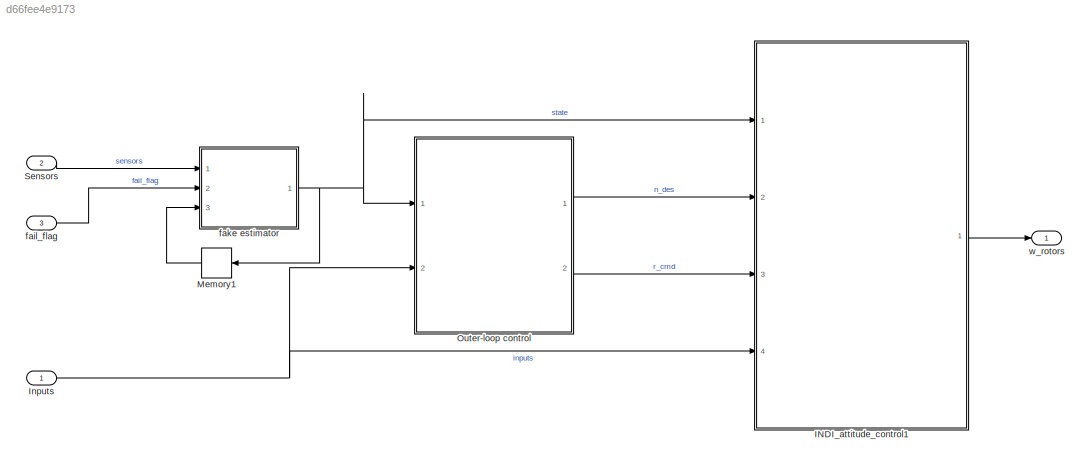
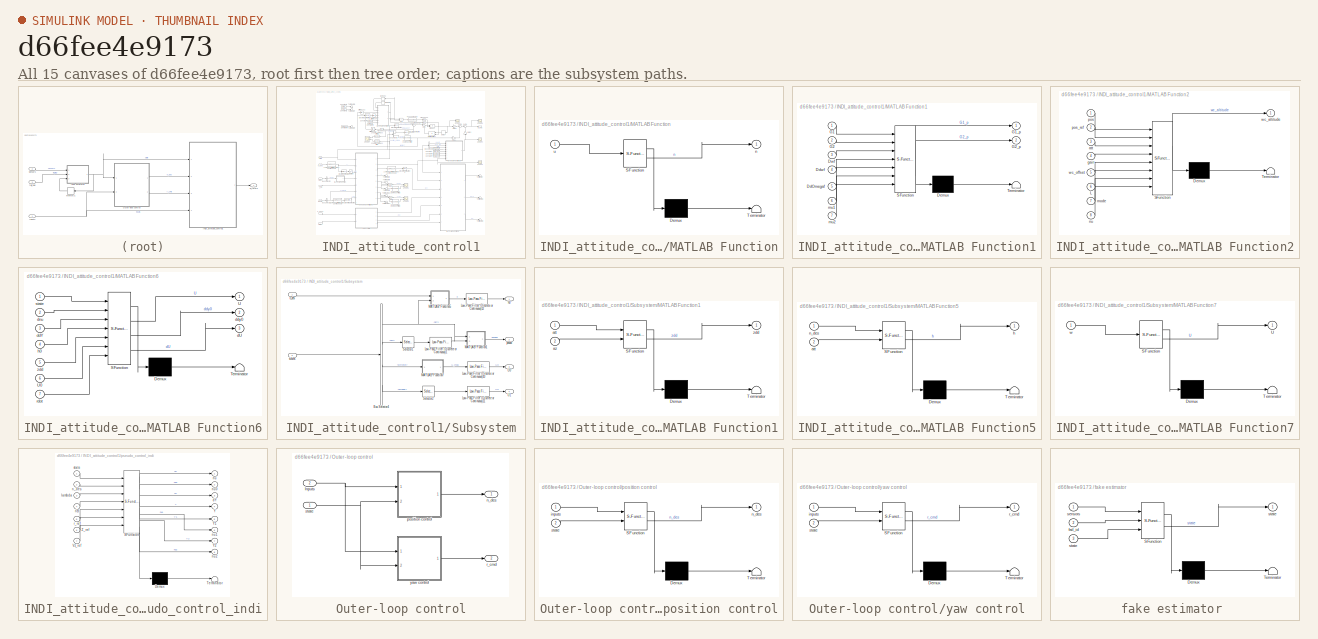
[diagram: thumbnail index - all 15 canvases of the model, root first then tree order]
MODEL slx_d66fee4e9173
KIND model
CONFIG AbsTol = auto
CONFIG EnableMultiTasking = off
CONFIG FixedStep = 0.001
CONFIG MaxStep = auto
CONFIG MinStep = auto
CONFIG RelTol = 1e-3
CONFIG SampleTimeConstraint = Unconstrained
CONFIG SolverName = ode3
CONFIG StartTime = 0.0
CONFIG StopTime = 10.0
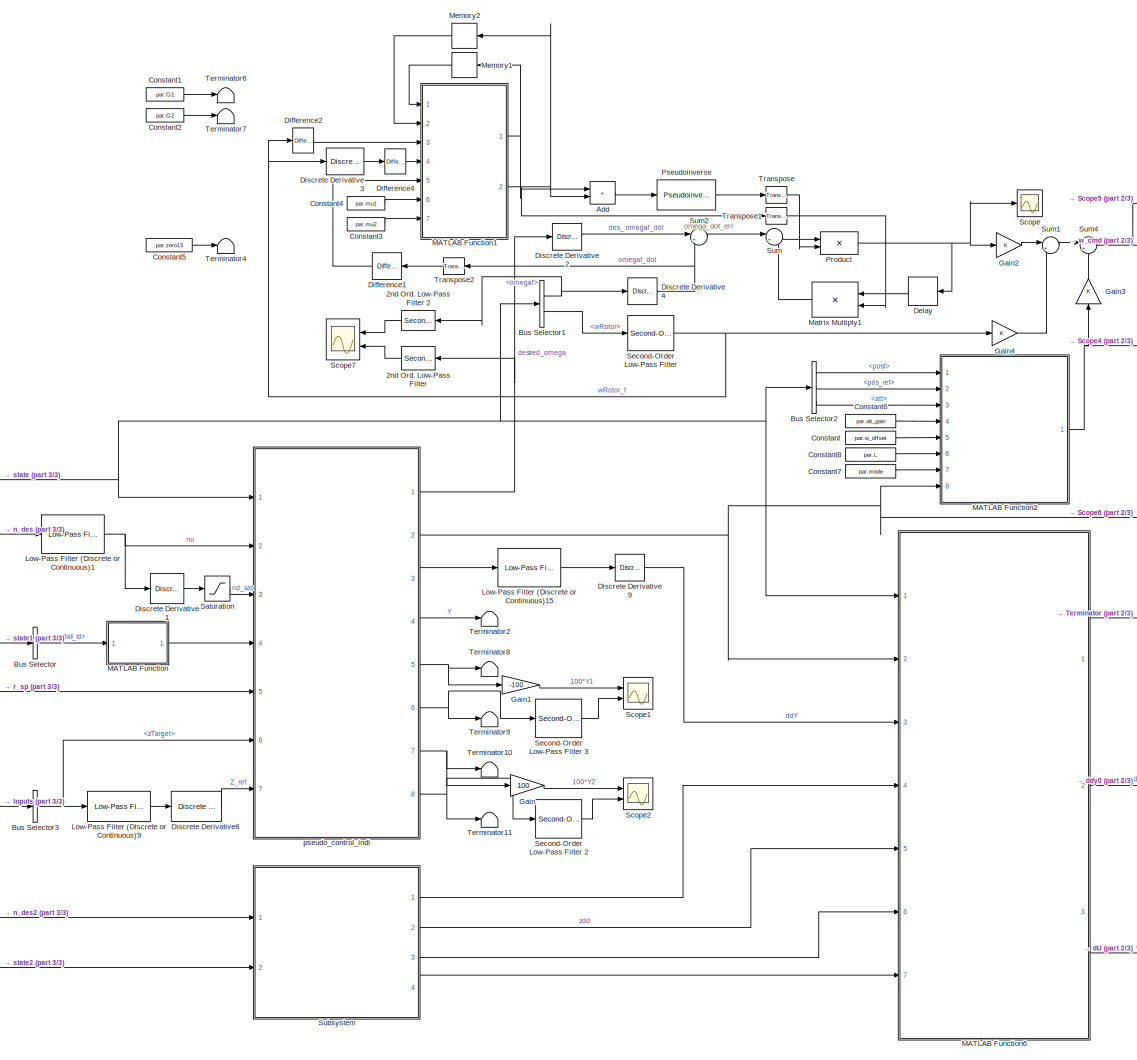
[diagram: INDI_attitude_control1 - part 1/3, most of the canvas]
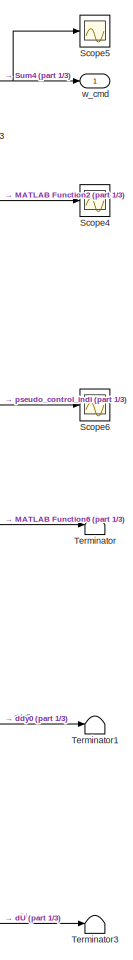
[diagram: INDI_attitude_control1 - part 2/3, right side, full height]
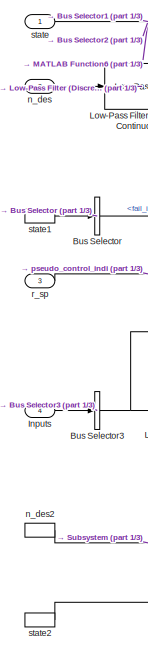
[diagram: INDI_attitude_control1 - part 3/3, bottom left region]
BLOCK [SubSystem] INDI_attitude_control1
  Ports = [4, 1]
  RequestExecContextInheritance = off
BLOCK [Reference] INDI_attitude_control1/2nd Ord. Low-Pass Filter  REF=eeGeneralControl/Second-Order
Low-Pass Filter
(Discrete or Continuous)
  NameLocation = top
  Ports = [1, 1]
  SourceBlock = eeGeneralControl/Second-Order\nLow-Pass Filter\n(Discrete or Continuous)
  SourceProductBaseCode = PS
  SourceType = Second-Order Low-Pass Filter (Discrete or Continuous)
BLOCK [Reference] INDI_attitude_control1/2nd Ord. Low-Pass Filter 2  REF=eeGeneralControl/Second-Order
Low-Pass Filter
(Discrete or Continuous)
  NameLocation = top
  Ports = [1, 1]
  SourceBlock = eeGeneralControl/Second-Order\nLow-Pass Filter\n(Discrete or Continuous)
  SourceProductBaseCode = PS
  SourceType = Second-Order Low-Pass Filter (Discrete or Continuous)
BLOCK [Sum] INDI_attitude_control1/Add
  IconShape = rectangular
  Ports = [2, 1]
BLOCK [BusSelector] INDI_attitude_control1/Bus Selector
  OutputSignals = fail_id
  Ports = [1, 1]
BLOCK [BusSelector] INDI_attitude_control1/Bus Selector1
  OutputSignals = omegaf,wRotor
  Ports = [1, 2]
BLOCK [BusSelector] INDI_attitude_control1/Bus Selector2
  OutputSignals = posf,pos_ref,att
  Ports = [1, 3]
BLOCK [BusSelector] INDI_attitude_control1/Bus Selector3
  OutputSignals = zTarget
  Ports = [1, 1]
BLOCK [Constant] INDI_attitude_control1/Constant
  Value = par.w_offset
BLOCK [Constant] INDI_attitude_control1/Constant1
  Value = par.G1
BLOCK [Constant] INDI_attitude_control1/Constant2
  Value = par.G2
BLOCK [Constant] INDI_attitude_control1/Constant3
  Value = par.mu2
BLOCK [Constant] INDI_attitude_control1/Constant4
  Value = par.mu1
BLOCK [Constant] INDI_attitude_control1/Constant5
  Value = par.zero13
BLOCK [Constant] INDI_attitude_control1/Constant6
  Value = par.alt_gain
BLOCK [Constant] INDI_attitude_control1/Constant7
  Value = par.mode
BLOCK [Constant] INDI_attitude_control1/Constant8
  Value = par.L
BLOCK [Delay] INDI_attitude_control1/Delay
  DelayLength = 1
  InitialCondition = 0
  InputPortMap = u0
  NameLocation = top
  Ports = [1, 1]
BLOCK [Reference] INDI_attitude_control1/Difference1  REF=simulink/Discrete/Difference
  NameLocation = top
  Ports = [1, 1]
  SourceBlock = simulink/Discrete/Difference
  SourceProductBaseCode = SL
  SourceType = Difference
BLOCK [Reference] INDI_attitude_control1/Difference2  REF=simulink/Discrete/Difference
  Ports = [1, 1]
  SourceBlock = simulink/Discrete/Difference
  SourceProductBaseCode = SL
  SourceType = Difference
BLOCK [Reference] INDI_attitude_control1/Difference4  REF=simulink/Discrete/Difference
  Ports = [1, 1]
  SourceBlock = simulink/Discrete/Difference
  SourceProductBaseCode = SL
  SourceType = Difference
BLOCK [Reference] INDI_attitude_control1/Discrete Derivative1  REF=simulink/Discrete/Discrete Derivative
  Ports = [1, 1]
  SourceBlock = simulink/Discrete/Discrete Derivative
  SourceProductBaseCode = SL
  SourceType = Discrete Derivative
BLOCK [Reference] INDI_attitude_control1/Discrete Derivative2  REF=simulink/Discrete/Discrete Derivative
  Ports = [1, 1]
  SourceBlock = simulink/Discrete/Discrete Derivative
  SourceProductBaseCode = SL
  SourceType = Discrete Derivative
BLOCK [Reference] INDI_attitude_control1/Discrete Derivative3  REF=simulink/Discrete/Discrete Derivative
  Ports = [1, 1]
  SourceBlock = simulink/Discrete/Discrete Derivative
  SourceProductBaseCode = SL
  SourceType = Discrete Derivative
BLOCK [Reference] INDI_attitude_control1/Discrete Derivative4  REF=simulink/Discrete/Discrete Derivative
  Ports = [1, 1]
  SourceBlock = simulink/Discrete/Discrete Derivative
  SourceProductBaseCode = SL
  SourceType = Discrete Derivative
BLOCK [Reference] INDI_attitude_control1/Discrete Derivative8  REF=simulink/Discrete/Discrete Derivative
  Ports = [1, 1]
  SourceBlock = simulink/Discrete/Discrete Derivative
  SourceProductBaseCode = SL
  SourceType = Discrete Derivative
BLOCK [Reference] INDI_attitude_control1/Discrete Derivative9  REF=simulink/Discrete/Discrete Derivative
  Ports = [1, 1]
  SourceBlock = simulink/Discrete/Discrete Derivative
  SourceProductBaseCode = SL
  SourceType = Discrete Derivative
BLOCK [Gain] INDI_attitude_control1/Gain
  Gain = 100
BLOCK [Gain] INDI_attitude_control1/Gain1
  Gain = -100
BLOCK [Gain] INDI_attitude_control1/Gain2
BLOCK [Gain] INDI_attitude_control1/Gain3
  NameLocation = right
BLOCK [Gain] INDI_attitude_control1/Gain4
BLOCK [Inport] INDI_attitude_control1/Inputs
  Port = 4
BLOCK [Reference] INDI_attitude_control1/Low-Pass Filter (Discrete or Continuous)1  REF=eeGeneralControl/Low-Pass Filter
(Discrete or Continuous)
  Ports = [1, 1]
  SourceBlock = eeGeneralControl/Low-Pass Filter\n(Discrete or Continuous)
  SourceProductBaseCode = PS
  SourceType = Low-Pass Filter (Discrete or Continuous)
BLOCK [Reference] INDI_attitude_control1/Low-Pass Filter (Discrete or Continuous)15  REF=eeGeneralControl/Low-Pass Filter
(Discrete or Continuous)
  Ports = [1, 1]
  SourceBlock = eeGeneralControl/Low-Pass Filter\n(Discrete or Continuous)
  SourceProductBaseCode = PS
  SourceType = Low-Pass Filter (Discrete or Continuous)
BLOCK [Reference] INDI_attitude_control1/Low-Pass Filter (Discrete or Continuous)9  REF=eeGeneralControl/Low-Pass Filter
(Discrete or Continuous)
  Ports = [1, 1]
  SourceBlock = eeGeneralControl/Low-Pass Filter\n(Discrete or Continuous)
  SourceProductBaseCode = PS
  SourceType = Low-Pass Filter (Discrete or Continuous)
BLOCK [SubSystem] INDI_attitude_control1/MATLAB Function
  ErrorFcn = Stateflow.Translate.translate
  PermitHierarchicalResolution = ExplicitOnly
  Ports = [1, 1]
  RequestExecContextInheritance = off
  SFBlockType = MATLAB Function
  TreatAsAtomicUnit = on
BLOCK [Demux] INDI_attitude_control1/MATLAB Function/ Demux 
  Outputs = 1
  Ports = [1, 1]
BLOCK [S-Function] INDI_attitude_control1/MATLAB Function/ SFunction 
  EnableBusSupport = on
  FunctionName = sf_sfun
  Parameters = par
  PortCounts = [1 2]
  Ports = [1, 2]
  SFcnIsStateOwnerBlock = off
  SFunctionDeploymentMode = off
  Tag = Stateflow S-Function 11
BLOCK [Terminator] INDI_attitude_control1/MATLAB Function/ Terminator 
BLOCK [Outport] INDI_attitude_control1/MATLAB Function/n
  VectorParamsAs1DForOutWhenUnconnected = off
BLOCK [Inport] INDI_attitude_control1/MATLAB Function/u
BLOCK [SubSystem] INDI_attitude_control1/MATLAB Function1
  ErrorFcn = Stateflow.Translate.translate
  PermitHierarchicalResolution = ExplicitOnly
  Ports = [7, 2]
  RequestExecContextInheritance = off
  SFBlockType = MATLAB Function
  TreatAsAtomicUnit = on
BLOCK [Demux] INDI_attitude_control1/MATLAB Function1/ Demux 
  Outputs = 1
  Ports = [1, 1]
BLOCK [S-Function] INDI_attitude_control1/MATLAB Function1/ SFunction 
  EnableBusSupport = on
  FunctionName = sf_sfun
  PortCounts = [7 3]
  Ports = [7, 3]
  SFcnIsStateOwnerBlock = off
  SFunctionDeploymentMode = off
  Tag = Stateflow S-Function 1
BLOCK [Terminator] INDI_attitude_control1/MATLAB Function1/ Terminator 
BLOCK [Inport] INDI_attitude_control1/MATLAB Function1/DdOmegaf
  Port = 5
BLOCK [Inport] INDI_attitude_control1/MATLAB Function1/Ddwf
  Port = 4
BLOCK [Inport] INDI_attitude_control1/MATLAB Function1/Dwf
  Port = 3
BLOCK [Inport] INDI_attitude_control1/MATLAB Function1/G1
BLOCK [Outport] INDI_attitude_control1/MATLAB Function1/G1_p
BLOCK [Inport] INDI_attitude_control1/MATLAB Function1/G2
  Port = 2
BLOCK [Outport] INDI_attitude_control1/MATLAB Function1/G2_p
  Port = 2
BLOCK [Inport] INDI_attitude_control1/MATLAB Function1/mu1
  Port = 6
BLOCK [Inport] INDI_attitude_control1/MATLAB Function1/mu2
  Port = 7
BLOCK [SubSystem] INDI_attitude_control1/MATLAB Function2
  ErrorFcn = Stateflow.Translate.translate
  PermitHierarchicalResolution = ExplicitOnly
  Ports = [8, 1]
  RequestExecContextInheritance = off
  SFBlockType = MATLAB Function
  TreatAsAtomicUnit = on
BLOCK [Demux] INDI_attitude_control1/MATLAB Function2/ Demux 
  Outputs = 1
  Ports = [1, 1]
BLOCK [S-Function] INDI_attitude_control1/MATLAB Function2/ SFunction 
  EnableBusSupport = on
  FunctionName = sf_sfun
  PortCounts = [8 2]
  Ports = [8, 2]
  SFcnIsStateOwnerBlock = off
  SFunctionDeploymentMode = off
  Tag = Stateflow S-Function 5
BLOCK [Terminator] INDI_attitude_control1/MATLAB Function2/ Terminator 
BLOCK [Inport] INDI_attitude_control1/MATLAB Function2/L
  Port = 6
BLOCK [Inport] INDI_attitude_control1/MATLAB Function2/att
  Port = 3
BLOCK [Inport] INDI_attitude_control1/MATLAB Function2/gain
  Port = 4
BLOCK [Inport] INDI_attitude_control1/MATLAB Function2/mode
  Port = 7
BLOCK [Inport] INDI_attitude_control1/MATLAB Function2/nu
  Port = 8
BLOCK [Inport] INDI_attitude_control1/MATLAB Function2/pos
BLOCK [Inport] INDI_attitude_control1/MATLAB Function2/pos_ref
  Port = 2
BLOCK [Outport] INDI_attitude_control1/MATLAB Function2/wc_altitude
BLOCK [Inport] INDI_attitude_control1/MATLAB Function2/wc_offset
  Port = 5
BLOCK [SubSystem] INDI_attitude_control1/MATLAB Function6
  ErrorFcn = Stateflow.Translate.translate
  PermitHierarchicalResolution = ExplicitOnly
  Ports = [7, 3]
  RequestExecContextInheritance = off
  SFBlockType = MATLAB Function
  TreatAsAtomicUnit = on
BLOCK [Demux] INDI_attitude_control1/MATLAB Function6/ Demux 
  Outputs = 1
  Ports = [1, 1]
BLOCK [S-Function] INDI_attitude_control1/MATLAB Function6/ SFunction 
  EnableBusSupport = on
  FunctionName = sf_sfun
  Parameters = par
  PortCounts = [7 4]
  Ports = [7, 4]
  SFcnIsStateOwnerBlock = off
  SFunctionDeploymentMode = off
  Tag = Stateflow S-Function 12
BLOCK [Terminator] INDI_attitude_control1/MATLAB Function6/ Terminator 
BLOCK [Outport] INDI_attitude_control1/MATLAB Function6/U
  VectorParamsAs1DForOutWhenUnconnected = off
BLOCK [Inport] INDI_attitude_control1/MATLAB Function6/U0
  Port = 6
BLOCK [Outport] INDI_attitude_control1/MATLAB Function6/dU
  Port = 3
BLOCK [Inport] INDI_attitude_control1/MATLAB Function6/ddY
  Port = 3
BLOCK [Outport] INDI_attitude_control1/MATLAB Function6/ddy0
  Port = 2
  VectorParamsAs1DForOutWhenUnconnected = off
BLOCK [Inport] INDI_attitude_control1/MATLAB Function6/dnu
  Port = 2
BLOCK [Inport] INDI_attitude_control1/MATLAB Function6/h0
  Port = 4
BLOCK [Inport] INDI_attitude_control1/MATLAB Function6/rdot
  Port = 7
BLOCK [Inport] INDI_attitude_control1/MATLAB Function6/state
BLOCK [Inport] INDI_attitude_control1/MATLAB Function6/zdd
  Port = 5
BLOCK [Product] INDI_attitude_control1/Matrix Multiply1
  Multiplication = Matrix(*)
  NameLocation = top
  Ports = [2, 1]
BLOCK [Memory] INDI_attitude_control1/Memory1
  InitialCondition = par.G1
  LinearizeMemory = on
  NameLocation = top
BLOCK [Memory] INDI_attitude_control1/Memory2
  InitialCondition = par.G2
  LinearizeMemory = on
  NameLocation = top
BLOCK [Product] INDI_attitude_control1/Product
  Multiplication = Matrix(*)
  Ports = [2, 1]
BLOCK [Reference] INDI_attitude_control1/Pseudoinverse  REF=dspinverses/Pseudoinverse
  Ports = [1, 1]
  SourceBlock = dspinverses/Pseudoinverse
  SourceProductBaseCode = DS
  SourceType = Pseudoinverse
BLOCK [Saturate] INDI_attitude_control1/Saturation
BLOCK [Scope] INDI_attitude_control1/Scope
  Floating = off
  NumInputPorts = 1
  Ports = [1]
  ScopeSpecificationString = Simulink.scopes.TimeScopeBlockCfg('CurrentConfiguration', extmgr.ConfigurationSet(extmgr.Configuration('Core','General UI',true),extmgr.Configuration('Core','Source UI',true),extmgr.Configuration('Sources','WiredSimulink',true),extmgr.Configuration('Visuals','Time Domain',true,'SerializedDisplays',{struct('MinYLimReal','-263.42741','MaxYLimReal','291.5682','YLabelReal','','MinYLimMag',' 0.00000','...<+1448ch>
BLOCK [Scope] INDI_attitude_control1/Scope1
  Floating = off
  NumInputPorts = 2
  Ports = [2]
  ScopeSpecificationString = Simulink.scopes.TimeScopeBlockCfg('CurrentConfiguration', extmgr.ConfigurationSet(extmgr.Configuration('Core','General UI',true),extmgr.Configuration('Core','Source UI',true),extmgr.Configuration('Sources','WiredSimulink',true,'DataLoggingVariableName','ScopeData1'),extmgr.Configuration('Visuals','Time Domain',true,'SerializedDisplays',{struct('MinYLimReal','-599.97616','MaxYLimReal','820.28865','...<+1511ch>
BLOCK [Scope] INDI_attitude_control1/Scope2
  Floating = off
  NumInputPorts = 2
  Ports = [2]
  ScopeSpecificationString = Simulink.scopes.TimeScopeBlockCfg('CurrentConfiguration', extmgr.ConfigurationSet(extmgr.Configuration('Core','General UI',true),extmgr.Configuration('Core','Source UI',true),extmgr.Configuration('Sources','WiredSimulink',true,'DataLoggingVariableName','ScopeData2'),extmgr.Configuration('Visuals','Time Domain',true,'SerializedDisplays',{struct('MinYLimReal','-610.5397','MaxYLimReal','967.67111','Y...<+1508ch>
BLOCK [Scope] INDI_attitude_control1/Scope4
  Floating = off
  NumInputPorts = 1
  Ports = [1]
  ScopeSpecificationString = Simulink.scopes.TimeScopeBlockCfg('CurrentConfiguration', extmgr.ConfigurationSet(extmgr.Configuration('Core','General UI',true),extmgr.Configuration('Core','Source UI',true),extmgr.Configuration('Sources','WiredSimulink',true,'DataLoggingVariableName','ScopeData3'),extmgr.Configuration('Visuals','Time Domain',true,'SerializedDisplays',{struct('MinYLimReal','534.92279','MaxYLimReal','1010.23938','...<+1483ch>
BLOCK [Scope] INDI_attitude_control1/Scope5
  Floating = off
  NumInputPorts = 1
  Ports = [1]
  ScopeSpecificationString = Simulink.scopes.TimeScopeBlockCfg('CurrentConfiguration', extmgr.ConfigurationSet(extmgr.Configuration('Core','General UI',true),extmgr.Configuration('Core','Source UI',true),extmgr.Configuration('Sources','WiredSimulink',true,'DataLoggingVariableName','ScopeData1'),extmgr.Configuration('Visuals','Time Domain',true,'SerializedDisplays',{struct('MinYLimReal','534.92279','MaxYLimReal','1010.23938','...<+1483ch>
BLOCK [Scope] INDI_attitude_control1/Scope6
  Floating = off
  NumInputPorts = 1
  Ports = [1]
  ScopeSpecificationString = Simulink.scopes.TimeScopeBlockCfg('CurrentConfiguration', extmgr.ConfigurationSet(extmgr.Configuration('Core','General UI',true),extmgr.Configuration('Core','Source UI',true),extmgr.Configuration('Sources','WiredSimulink',true,'DataLoggingVariableName','ScopeData4'),extmgr.Configuration('Visuals','Time Domain',true,'SerializedDisplays',{struct('MinYLimReal','534.92279','MaxYLimReal','1010.23938','...<+1483ch>
BLOCK [Scope] INDI_attitude_control1/Scope7
  Floating = off
  NameLocation = top
  NumInputPorts = 2
  Ports = [2]
  ScopeSpecificationString = Simulink.scopes.TimeScopeBlockCfg('CurrentConfiguration', extmgr.ConfigurationSet(extmgr.Configuration('Core','General UI',true),extmgr.Configuration('Core','Source UI',true),extmgr.Configuration('Sources','WiredSimulink',true,'DataLoggingVariableName','ScopeData1'),extmgr.Configuration('Visuals','Time Domain',true,'SerializedDisplays',{struct('MinYLimReal','-9.09561','MaxYLimReal','2.40213','YLab...<+1916ch>
BLOCK [Reference] INDI_attitude_control1/Second-Order Low-Pass Filter  REF=eeGeneralControl/Second-Order
Low-Pass Filter
(Discrete or Continuous)
  Ports = [1, 1]
  SourceBlock = eeGeneralControl/Second-Order\nLow-Pass Filter\n(Discrete or Continuous)
  SourceProductBaseCode = PS
  SourceType = Second-Order Low-Pass Filter (Discrete or Continuous)
BLOCK [Reference] INDI_attitude_control1/Second-Order Low-Pass Filter 2  REF=eeGeneralControl/Second-Order
Low-Pass Filter
(Discrete or Continuous)
  Ports = [1, 1]
  SourceBlock = eeGeneralControl/Second-Order\nLow-Pass Filter\n(Discrete or Continuous)
  SourceProductBaseCode = PS
  SourceType = Second-Order Low-Pass Filter (Discrete or Continuous)
BLOCK [Reference] INDI_attitude_control1/Second-Order Low-Pass Filter 3  REF=eeGeneralControl/Second-Order
Low-Pass Filter
(Discrete or Continuous)
  Ports = [1, 1]
  SourceBlock = eeGeneralControl/Second-Order\nLow-Pass Filter\n(Discrete or Continuous)
  SourceProductBaseCode = PS
  SourceType = Second-Order Low-Pass Filter (Discrete or Continuous)
BLOCK [SubSystem] INDI_attitude_control1/Subsystem
  Ports = [2, 4]
  RequestExecContextInheritance = off
BLOCK [BusSelector] INDI_attitude_control1/Subsystem/Bus Selector4
  OutputSignals = att,acc,wRotor,omegaf
  Ports = [1, 4]
BLOCK [Reference] INDI_attitude_control1/Subsystem/Low-Pass Filter (Discrete or Continuous)1  REF=eeGeneralControl/Low-Pass Filter
(Discrete or Continuous)
  Ports = [1, 1]
  SourceBlock = eeGeneralControl/Low-Pass Filter\n(Discrete or Continuous)
  SourceProductBaseCode = PS
  SourceType = Low-Pass Filter (Discrete or Continuous)
BLOCK [Reference] INDI_attitude_control1/Subsystem/Low-Pass Filter (Discrete or Continuous)10  REF=eeGeneralControl/Low-Pass Filter
(Discrete or Continuous)
  Ports = [1, 1]
  SourceBlock = eeGeneralControl/Low-Pass Filter\n(Discrete or Continuous)
  SourceProductBaseCode = PS
  SourceType = Low-Pass Filter (Discrete or Continuous)
BLOCK [Reference] INDI_attitude_control1/Subsystem/Low-Pass Filter (Discrete or Continuous)11  REF=eeGeneralControl/Low-Pass Filter
(Discrete or Continuous)
  Ports = [1, 1]
  SourceBlock = eeGeneralControl/Low-Pass Filter\n(Discrete or Continuous)
  SourceProductBaseCode = PS
  SourceType = Low-Pass Filter (Discrete or Continuous)
BLOCK [Reference] INDI_attitude_control1/Subsystem/Low-Pass Filter (Discrete or Continuous)12  REF=eeGeneralControl/Low-Pass Filter
(Discrete or Continuous)
  Ports = [1, 1]
  SourceBlock = eeGeneralControl/Low-Pass Filter\n(Discrete or Continuous)
  SourceProductBaseCode = PS
  SourceType = Low-Pass Filter (Discrete or Continuous)
BLOCK [SubSystem] INDI_attitude_control1/Subsystem/MATLAB Function1
  ErrorFcn = Stateflow.Translate.translate
  PermitHierarchicalResolution = ExplicitOnly
  Ports = [2, 1]
  RequestExecContextInheritance = off
  SFBlockType = MATLAB Function
  TreatAsAtomicUnit = on
BLOCK [Demux] INDI_attitude_control1/Subsystem/MATLAB Function1/ Demux 
  Outputs = 1
  Ports = [1, 1]
BLOCK [S-Function] INDI_attitude_control1/Subsystem/MATLAB Function1/ SFunction 
  EnableBusSupport = on
  FunctionName = sf_sfun
  PortCounts = [2 2]
  Ports = [2, 2]
  SFcnIsStateOwnerBlock = off
  SFunctionDeploymentMode = off
  Tag = Stateflow S-Function 14
BLOCK [Terminator] INDI_attitude_control1/Subsystem/MATLAB Function1/ Terminator 
BLOCK [Inport] INDI_attitude_control1/Subsystem/MATLAB Function1/att
BLOCK [Inport] INDI_attitude_control1/Subsystem/MATLAB Function1/az
  Port = 2
BLOCK [Outport] INDI_attitude_control1/Subsystem/MATLAB Function1/zdd
  VectorParamsAs1DForOutWhenUnconnected = off
BLOCK [SubSystem] INDI_attitude_control1/Subsystem/MATLAB Function5
  ErrorFcn = Stateflow.Translate.translate
  PermitHierarchicalResolution = ExplicitOnly
  Ports = [2, 1]
  RequestExecContextInheritance = off
  SFBlockType = MATLAB Function
  TreatAsAtomicUnit = on
BLOCK [Demux] INDI_attitude_control1/Subsystem/MATLAB Function5/ Demux 
  Outputs = 1
  Ports = [1, 1]
BLOCK [S-Function] INDI_attitude_control1/Subsystem/MATLAB Function5/ SFunction 
  EnableBusSupport = on
  FunctionName = sf_sfun
  PortCounts = [2 2]
  Ports = [2, 2]
  SFcnIsStateOwnerBlock = off
  SFunctionDeploymentMode = off
  Tag = Stateflow S-Function 15
BLOCK [Terminator] INDI_attitude_control1/Subsystem/MATLAB Function5/ Terminator 
BLOCK [Inport] INDI_attitude_control1/Subsystem/MATLAB Function5/att
  Port = 2
BLOCK [Outport] INDI_attitude_control1/Subsystem/MATLAB Function5/h
  VectorParamsAs1DForOutWhenUnconnected = off
BLOCK [Inport] INDI_attitude_control1/Subsystem/MATLAB Function5/n_des
BLOCK [SubSystem] INDI_attitude_control1/Subsystem/MATLAB Function7
  ErrorFcn = Stateflow.Translate.translate
  NameLocation = top
  PermitHierarchicalResolution = ExplicitOnly
  Ports = [1, 1]
  RequestExecContextInheritance = off
  SFBlockType = MATLAB Function
  TreatAsAtomicUnit = on
BLOCK [Demux] INDI_attitude_control1/Subsystem/MATLAB Function7/ Demux 
  Outputs = 1
  Ports = [1, 1]
BLOCK [S-Function] INDI_attitude_control1/Subsystem/MATLAB Function7/ SFunction 
  EnableBusSupport = on
  FunctionName = sf_sfun
  PortCounts = [1 2]
  Ports = [1, 2]
  SFcnIsStateOwnerBlock = off
  SFunctionDeploymentMode = off
  Tag = Stateflow S-Function 16
BLOCK [Terminator] INDI_attitude_control1/Subsystem/MATLAB Function7/ Terminator 
BLOCK [Outport] INDI_attitude_control1/Subsystem/MATLAB Function7/U
  VectorParamsAs1DForOutWhenUnconnected = off
BLOCK [Inport] INDI_attitude_control1/Subsystem/MATLAB Function7/w
BLOCK [Selector] INDI_attitude_control1/Subsystem/Selector1
  IndexOptions = Index vector (dialog)
  Indices = 3
  InputPortWidth = 3
  OutputSizes = 1
  Ports = [1, 1]
BLOCK [Selector] INDI_attitude_control1/Subsystem/Selector2
  IndexOptions = Index vector (dialog)
  Indices = 3
  InputPortWidth = 3
  OutputSizes = 1
  Ports = [1, 1]
BLOCK [Outport] INDI_attitude_control1/Subsystem/U0
  Port = 3
  VectorParamsAs1DForOutWhenUnconnected = off
BLOCK [Outport] INDI_attitude_control1/Subsystem/U1
  Port = 4
  VectorParamsAs1DForOutWhenUnconnected = off
BLOCK [Outport] INDI_attitude_control1/Subsystem/h0
  VectorParamsAs1DForOutWhenUnconnected = off
BLOCK [Inport] INDI_attitude_control1/Subsystem/n_des
BLOCK [Outport] INDI_attitude_control1/Subsystem/posdd
  Port = 2
  VectorParamsAs1DForOutWhenUnconnected = off
BLOCK [Inport] INDI_attitude_control1/Subsystem/states
  Port = 2
BLOCK [Sum] INDI_attitude_control1/Sum
  Inputs = |++
  Ports = [2, 1]
BLOCK [Sum] INDI_attitude_control1/Sum1
  Inputs = |++
  Ports = [2, 1]
BLOCK [Sum] INDI_attitude_control1/Sum2
  Inputs = |+-
  Ports = [2, 1]
BLOCK [Sum] INDI_attitude_control1/Sum4
  Inputs = |++
  Ports = [2, 1]
BLOCK [Terminator] INDI_attitude_control1/Terminator
BLOCK [Terminator] INDI_attitude_control1/Terminator1
BLOCK [Terminator] INDI_attitude_control1/Terminator10
BLOCK [Terminator] INDI_attitude_control1/Terminator11
BLOCK [Terminator] INDI_attitude_control1/Terminator2
BLOCK [Terminator] INDI_attitude_control1/Terminator3
BLOCK [Terminator] INDI_attitude_control1/Terminator4
BLOCK [Terminator] INDI_attitude_control1/Terminator6
BLOCK [Terminator] INDI_attitude_control1/Terminator7
BLOCK [Terminator] INDI_attitude_control1/Terminator8
BLOCK [Terminator] INDI_attitude_control1/Terminator9
BLOCK [Reference] INDI_attitude_control1/Transpose  REF=matrix_library/Transpose
  Ports = [1, 1]
  SourceBlock = matrix_library/Transpose
  SourceProductBaseCode = SL
  SourceType = Transpose
BLOCK [Reference] INDI_attitude_control1/Transpose1  REF=matrix_library/Transpose
  Ports = [1, 1]
  SourceBlock = matrix_library/Transpose
  SourceProductBaseCode = SL
  SourceType = Transpose
BLOCK [Reference] INDI_attitude_control1/Transpose2  REF=matrix_library/Transpose
  NameLocation = top
  Ports = [1, 1]
  SourceBlock = matrix_library/Transpose
  SourceProductBaseCode = SL
  SourceType = Transpose
BLOCK [Inport] INDI_attitude_control1/n_des
  Port = 2
  PortDimensions = 3
BLOCK [InportShadow] INDI_attitude_control1/n_des2
  Port = 2
  PortDimensions = 3
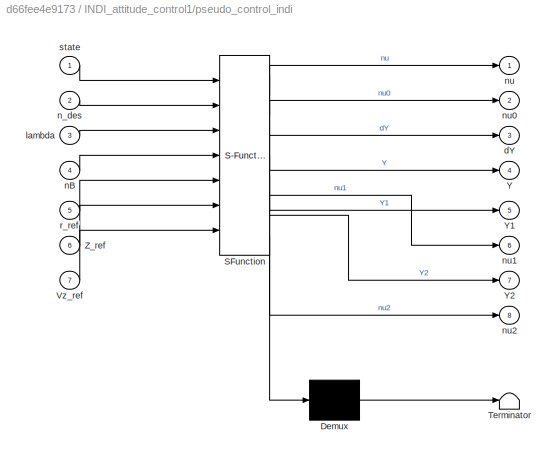
BLOCK [SubSystem] INDI_attitude_control1/pseudo_control_indi
  ErrorFcn = Stateflow.Translate.translate
  PermitHierarchicalResolution = ExplicitOnly
  Ports = [7, 8]
  RequestExecContextInheritance = off
  SFBlockType = MATLAB Function
  TreatAsAtomicUnit = on
BLOCK [Demux] INDI_attitude_control1/pseudo_control_indi/ Demux 
  Outputs = 1
  Ports = [1, 1]
BLOCK [S-Function] INDI_attitude_control1/pseudo_control_indi/ SFunction 
  EnableBusSupport = on
  FunctionName = sf_sfun
  Parameters = par
  PortCounts = [7 9]
  Ports = [7, 9]
  SFcnIsStateOwnerBlock = off
  SFunctionDeploymentMode = off
  Tag = Stateflow S-Function 17
BLOCK [Terminator] INDI_attitude_control1/pseudo_control_indi/ Terminator 
BLOCK [Inport] INDI_attitude_control1/pseudo_control_indi/Vz_ref
  Port = 7
BLOCK [Outport] INDI_attitude_control1/pseudo_control_indi/Y
  Port = 4
  VectorParamsAs1DForOutWhenUnconnected = off
BLOCK [Outport] INDI_attitude_control1/pseudo_control_indi/Y1
  Port = 5
BLOCK [Outport] INDI_attitude_control1/pseudo_control_indi/Y2
  Port = 7
BLOCK [Inport] INDI_attitude_control1/pseudo_control_indi/Z_ref
  Port = 6
BLOCK [Outport] INDI_attitude_control1/pseudo_control_indi/dY
  Port = 3
  VectorParamsAs1DForOutWhenUnconnected = off
BLOCK [Inport] INDI_attitude_control1/pseudo_control_indi/lambda
  Port = 3
BLOCK [Inport] INDI_attitude_control1/pseudo_control_indi/nB
  Port = 4
BLOCK [Inport] INDI_attitude_control1/pseudo_control_indi/n_des
  Port = 2
BLOCK [Outport] INDI_attitude_control1/pseudo_control_indi/nu
  VectorParamsAs1DForOutWhenUnconnected = off
BLOCK [Outport] INDI_attitude_control1/pseudo_control_indi/nu0
  Port = 2
BLOCK [Outport] INDI_attitude_control1/pseudo_control_indi/nu1
  Port = 6
BLOCK [Outport] INDI_attitude_control1/pseudo_control_indi/nu2
  Port = 8
BLOCK [Inport] INDI_attitude_control1/pseudo_control_indi/r_ref
  Port = 5
BLOCK [Inport] INDI_attitude_control1/pseudo_control_indi/state
BLOCK [Inport] INDI_attitude_control1/r_sp
  Port = 3
BLOCK [Inport] INDI_attitude_control1/state
BLOCK [InportShadow] INDI_attitude_control1/state1
BLOCK [InportShadow] INDI_attitude_control1/state2
BLOCK [Outport] INDI_attitude_control1/w_cmd
  VectorParamsAs1DForOutWhenUnconnected = off
BLOCK [Inport] Inputs
  OutDataTypeStr = Bus: inputsBus
BLOCK [Memory] Memory1
  NameLocation = top
BLOCK [SubSystem] Outer-loop control
  Ports = [2, 2]
  RequestExecContextInheritance = off
BLOCK [Inport] Outer-loop control/Inputs
  Port = 2
BLOCK [Outport] Outer-loop control/n_des
  VectorParamsAs1DForOutWhenUnconnected = off
BLOCK [SubSystem] Outer-loop control/position control
  ErrorFcn = Stateflow.Translate.translate
  PermitHierarchicalResolution = ExplicitOnly
  Ports = [2, 1]
  RequestExecContextInheritance = off
  SFBlockType = MATLAB Function
  TreatAsAtomicUnit = on
BLOCK [Demux] Outer-loop control/position control/ Demux 
  Outputs = 1
  Ports = [1, 1]
BLOCK [S-Function] Outer-loop control/position control/ SFunction 
  EnableBusSupport = on
  FunctionName = sf_sfun
  Parameters = par
  PortCounts = [2 2]
  Ports = [2, 2]
  SFcnIsStateOwnerBlock = off
  SFunctionDeploymentMode = off
  Tag = Stateflow S-Function 2
BLOCK [Terminator] Outer-loop control/position control/ Terminator 
BLOCK [Inport] Outer-loop control/position control/inputs
BLOCK [Outport] Outer-loop control/position control/n_des
  VectorParamsAs1DForOutWhenUnconnected = off
BLOCK [Inport] Outer-loop control/position control/state
  Port = 2
BLOCK [Outport] Outer-loop control/r_cmd
  Port = 2
  VectorParamsAs1DForOutWhenUnconnected = off
BLOCK [Inport] Outer-loop control/state
BLOCK [SubSystem] Outer-loop control/yaw control
  ErrorFcn = Stateflow.Translate.translate
  PermitHierarchicalResolution = ExplicitOnly
  Ports = [2, 1]
  RequestExecContextInheritance = off
  SFBlockType = MATLAB Function
  TreatAsAtomicUnit = on
BLOCK [Demux] Outer-loop control/yaw control/ Demux 
  Outputs = 1
  Ports = [1, 1]
BLOCK [S-Function] Outer-loop control/yaw control/ SFunction 
  EnableBusSupport = on
  FunctionName = sf_sfun
  Parameters = par
  PortCounts = [2 2]
  Ports = [2, 2]
  SFcnIsStateOwnerBlock = off
  SFunctionDeploymentMode = off
  Tag = Stateflow S-Function 3
BLOCK [Terminator] Outer-loop control/yaw control/ Terminator 
BLOCK [Inport] Outer-loop control/yaw control/inputs
BLOCK [Outport] Outer-loop control/yaw control/r_cmd
  VectorParamsAs1DForOutWhenUnconnected = off
BLOCK [Inport] Outer-loop control/yaw control/state
  Port = 2
BLOCK [Inport] Sensors
  OutDataTypeStr = Bus: sensorsBus
  Port = 2
BLOCK [Inport] fail_flag
  OutDataTypeStr = double
  Port = 3
  PortDimensions = 1
BLOCK [SubSystem] fake estimator 
  ErrorFcn = Stateflow.Translate.translate
  PermitHierarchicalResolution = ExplicitOnly
  Ports = [3, 1]
  RequestExecContextInheritance = off
  SFBlockType = MATLAB Function
  TreatAsAtomicUnit = on
BLOCK [Demux] fake estimator / Demux 
  Outputs = 1
  Ports = [1, 1]
BLOCK [S-Function] fake estimator / SFunction 
  EnableBusSupport = on
  FunctionName = sf_sfun
  PortCounts = [3 2]
  Ports = [3, 2]
  SFcnIsStateOwnerBlock = off
  SFunctionDeploymentMode = off
  Tag = Stateflow S-Function 4
BLOCK [Terminator] fake estimator / Terminator 
BLOCK [Inport] fake estimator /fail_id
  Port = 2
BLOCK [Inport] fake estimator /sensors
BLOCK [Outport] fake estimator /state
  VectorParamsAs1DForOutWhenUnconnected = off
BLOCK [Inport] fake estimator /state 
  Port = 3
BLOCK [Outport] w_rotors
  VectorParamsAs1DForOutWhenUnconnected = off
ANNOTATION INDI_attitude_control1: omega_dot_err
LINE INDI_attitude_control1/2nd Ord. Low-Pass Filter 2:1 -> INDI_attitude_control1/Scope7:1
LINE INDI_attitude_control1/2nd Ord. Low-Pass Filter:1 -> INDI_attitude_control1/Scope7:2
LINE INDI_attitude_control1/Add:1 -> INDI_attitude_control1/Pseudoinverse:1
NET INDI_attitude_control1/Bus Selector1:1 -> INDI_attitude_control1/2nd Ord. Low-Pass Filter 2:1, INDI_attitude_control1/Discrete Derivative4:1
LINE INDI_attitude_control1/Bus Selector1:2 -> INDI_attitude_control1/Second-Order Low-Pass Filter:1
LINE INDI_attitude_control1/Bus Selector2:1 -> INDI_attitude_control1/MATLAB Function2:1
LINE INDI_attitude_control1/Bus Selector2:2 -> INDI_attitude_control1/MATLAB Function2:2
LINE INDI_attitude_control1/Bus Selector2:3 -> INDI_attitude_control1/MATLAB Function2:3
NET INDI_attitude_control1/Bus Selector3:1 -> INDI_attitude_control1/Low-Pass Filter (Discrete or Continuous)9:1, INDI_attitude_control1/pseudo_control_indi:6
LINE INDI_attitude_control1/Bus Selector:1 -> INDI_attitude_control1/MATLAB Function:1
LINE INDI_attitude_control1/Constant1:1 -> INDI_attitude_control1/Terminator6:1
LINE INDI_attitude_control1/Constant2:1 -> INDI_attitude_control1/Terminator7:1
LINE INDI_attitude_control1/Constant3:1 -> INDI_attitude_control1/MATLAB Function1:7
LINE INDI_attitude_control1/Constant4:1 -> INDI_attitude_control1/MATLAB Function1:6
LINE INDI_attitude_control1/Constant5:1 -> INDI_attitude_control1/Terminator4:1
LINE INDI_attitude_control1/Constant6:1 -> INDI_attitude_control1/MATLAB Function2:4
LINE INDI_attitude_control1/Constant7:1 -> INDI_attitude_control1/MATLAB Function2:7
LINE INDI_attitude_control1/Constant8:1 -> INDI_attitude_control1/MATLAB Function2:6
LINE INDI_attitude_control1/Constant:1 -> INDI_attitude_control1/MATLAB Function2:5
LINE INDI_attitude_control1/Delay:1 -> INDI_attitude_control1/Matrix Multiply1:1
LINE INDI_attitude_control1/Difference1:1 -> INDI_attitude_control1/MATLAB Function1:5
LINE INDI_attitude_control1/Difference2:1 -> INDI_attitude_control1/MATLAB Function1:3
LINE INDI_attitude_control1/Difference4:1 -> INDI_attitude_control1/MATLAB Function1:4
LINE INDI_attitude_control1/Discrete Derivative1:1 -> INDI_attitude_control1/Saturation:1
LINE INDI_attitude_control1/Discrete Derivative2:1 -> INDI_attitude_control1/Sum2:1
LINE INDI_attitude_control1/Discrete Derivative3:1 -> INDI_attitude_control1/Difference4:1
NET INDI_attitude_control1/Discrete Derivative4:1 -> INDI_attitude_control1/Sum2:2, INDI_attitude_control1/Transpose2:1
LINE INDI_attitude_control1/Discrete Derivative8:1 -> INDI_attitude_control1/pseudo_control_indi:7
LINE INDI_attitude_control1/Discrete Derivative9:1 -> INDI_attitude_control1/MATLAB Function6:3
LINE INDI_attitude_control1/Gain1:1 -> INDI_attitude_control1/Scope1:1
LINE INDI_attitude_control1/Gain2:1 -> INDI_attitude_control1/Sum1:1
LINE INDI_attitude_control1/Gain3:1 -> INDI_attitude_control1/Sum4:2
LINE INDI_attitude_control1/Gain4:1 -> INDI_attitude_control1/Sum1:2
LINE INDI_attitude_control1/Gain:1 -> INDI_attitude_control1/Scope2:1
LINE INDI_attitude_control1/Inputs:1 -> INDI_attitude_control1/Bus Selector3:1
LINE INDI_attitude_control1/Low-Pass Filter (Discrete or Continuous)15:1 -> INDI_attitude_control1/Discrete Derivative9:1
NET INDI_attitude_control1/Low-Pass Filter (Discrete or Continuous)1:1 -> INDI_attitude_control1/Discrete Derivative1:1, INDI_attitude_control1/pseudo_control_indi:2
LINE INDI_attitude_control1/Low-Pass Filter (Discrete or Continuous)9:1 -> INDI_attitude_control1/Discrete Derivative8:1
NET INDI_attitude_control1/MATLAB Function1:1 -> INDI_attitude_control1/Add:1, INDI_attitude_control1/Memory1:1
NET INDI_attitude_control1/MATLAB Function1:2 -> INDI_attitude_control1/Add:2, INDI_attitude_control1/Memory2:1, INDI_attitude_control1/Transpose1:1
NET INDI_attitude_control1/MATLAB Function2:1 -> INDI_attitude_control1/Gain3:1, INDI_attitude_control1/Scope4:1
LINE INDI_attitude_control1/MATLAB Function6:1 -> INDI_attitude_control1/Terminator:1
LINE INDI_attitude_control1/MATLAB Function6:2 -> INDI_attitude_control1/Terminator1:1
LINE INDI_attitude_control1/MATLAB Function6:3 -> INDI_attitude_control1/Terminator3:1
LINE INDI_attitude_control1/MATLAB Function:1 -> INDI_attitude_control1/pseudo_control_indi:4
LINE INDI_attitude_control1/Matrix Multiply1:1 -> INDI_attitude_control1/Sum:2
LINE INDI_attitude_control1/Memory1:1 -> INDI_attitude_control1/MATLAB Function1:1
LINE INDI_attitude_control1/Memory2:1 -> INDI_attitude_control1/MATLAB Function1:2
NET INDI_attitude_control1/Product:1 -> INDI_attitude_control1/Delay:1, INDI_attitude_control1/Gain2:1, INDI_attitude_control1/Scope:1
LINE INDI_attitude_control1/Pseudoinverse:1 -> INDI_attitude_control1/Transpose:1
LINE INDI_attitude_control1/Saturation:1 -> INDI_attitude_control1/pseudo_control_indi:3
LINE INDI_attitude_control1/Second-Order Low-Pass Filter 2:1 -> INDI_attitude_control1/Scope2:2
LINE INDI_attitude_control1/Second-Order Low-Pass Filter 3:1 -> INDI_attitude_control1/Scope1:2
NET INDI_attitude_control1/Second-Order Low-Pass Filter:1 -> INDI_attitude_control1/Difference2:1, INDI_attitude_control1/Discrete Derivative3:1, INDI_attitude_control1/Gain4:1
NET INDI_attitude_control1/Subsystem/Bus Selector4:1 -> INDI_attitude_control1/Subsystem/MATLAB Function1:1, INDI_attitude_control1/Subsystem/MATLAB Function5:2
LINE INDI_attitude_control1/Subsystem/Bus Selector4:2 -> INDI_attitude_control1/Subsystem/Selector1:1
LINE INDI_attitude_control1/Subsystem/Bus Selector4:3 -> INDI_attitude_control1/Subsystem/MATLAB Function7:1
LINE INDI_attitude_control1/Subsystem/Bus Selector4:4 -> INDI_attitude_control1/Subsystem/Selector2:1
LINE INDI_attitude_control1/Subsystem/Low-Pass Filter (Discrete or Continuous)10:1 -> INDI_attitude_control1/Subsystem/U0:1
LINE INDI_attitude_control1/Subsystem/Low-Pass Filter (Discrete or Continuous)11:1 -> INDI_attitude_control1/Subsystem/U1:1
LINE INDI_attitude_control1/Subsystem/Low-Pass Filter (Discrete or Continuous)12:1 -> INDI_attitude_control1/Subsystem/h0:1
LINE INDI_attitude_control1/Subsystem/Low-Pass Filter (Discrete or Continuous)1:1 -> INDI_attitude_control1/Subsystem/MATLAB Function1:2
LINE INDI_attitude_control1/Subsystem/MATLAB Function1:1 -> INDI_attitude_control1/Subsystem/posdd:1
LINE INDI_attitude_control1/Subsystem/MATLAB Function5:1 -> INDI_attitude_control1/Subsystem/Low-Pass Filter (Discrete or Continuous)12:1
LINE INDI_attitude_control1/Subsystem/MATLAB Function7:1 -> INDI_attitude_control1/Subsystem/Low-Pass Filter (Discrete or Continuous)10:1
LINE INDI_attitude_control1/Subsystem/Selector1:1 -> INDI_attitude_control1/Subsystem/Low-Pass Filter (Discrete or Continuous)1:1
LINE INDI_attitude_control1/Subsystem/Selector2:1 -> INDI_attitude_control1/Subsystem/Low-Pass Filter (Discrete or Continuous)11:1
LINE INDI_attitude_control1/Subsystem/n_des:1 -> INDI_attitude_control1/Subsystem/MATLAB Function5:1
LINE INDI_attitude_control1/Subsystem/states:1 -> INDI_attitude_control1/Subsystem/Bus Selector4:1
LINE INDI_attitude_control1/Subsystem:1 -> INDI_attitude_control1/MATLAB Function6:4
LINE INDI_attitude_control1/Subsystem:2 -> INDI_attitude_control1/MATLAB Function6:5
LINE INDI_attitude_control1/Subsystem:3 -> INDI_attitude_control1/MATLAB Function6:6
LINE INDI_attitude_control1/Subsystem:4 -> INDI_attitude_control1/MATLAB Function6:7
LINE INDI_attitude_control1/Sum1:1 -> INDI_attitude_control1/Sum4:1
LINE INDI_attitude_control1/Sum2:1 -> INDI_attitude_control1/Sum:1
NET INDI_attitude_control1/Sum4:1 -> INDI_attitude_control1/Scope5:1, INDI_attitude_control1/w_cmd:1
LINE INDI_attitude_control1/Sum:1 -> INDI_attitude_control1/Product:1
LINE INDI_attitude_control1/Transpose1:1 -> INDI_attitude_control1/Matrix Multiply1:2
LINE INDI_attitude_control1/Transpose2:1 -> INDI_attitude_control1/Difference1:1
LINE INDI_attitude_control1/Transpose:1 -> INDI_attitude_control1/Product:2
LINE INDI_attitude_control1/n_des2:1 -> INDI_attitude_control1/Subsystem:1
LINE INDI_attitude_control1/n_des:1 -> INDI_attitude_control1/Low-Pass Filter (Discrete or Continuous)1:1
NET INDI_attitude_control1/pseudo_control_indi:1 -> INDI_attitude_control1/2nd Ord. Low-Pass Filter:1, INDI_attitude_control1/Discrete Derivative2:1
NET INDI_attitude_control1/pseudo_control_indi:2 -> INDI_attitude_control1/MATLAB Function2:8, INDI_attitude_control1/MATLAB Function6:2, INDI_attitude_control1/Scope6:1
LINE INDI_attitude_control1/pseudo_control_indi:3 -> INDI_attitude_control1/Low-Pass Filter (Discrete or Continuous)15:1
LINE INDI_attitude_control1/pseudo_control_indi:4 -> INDI_attitude_control1/Terminator2:1
NET INDI_attitude_control1/pseudo_control_indi:5 -> INDI_attitude_control1/Gain1:1, INDI_attitude_control1/Terminator8:1
NET INDI_attitude_control1/pseudo_control_indi:6 -> INDI_attitude_control1/Second-Order Low-Pass Filter 3:1, INDI_attitude_control1/Terminator9:1
NET INDI_attitude_control1/pseudo_control_indi:7 -> INDI_attitude_control1/Gain:1, INDI_attitude_control1/Terminator10:1
NET INDI_attitude_control1/pseudo_control_indi:8 -> INDI_attitude_control1/Second-Order Low-Pass Filter 2:1, INDI_attitude_control1/Terminator11:1
LINE INDI_attitude_control1/r_sp:1 -> INDI_attitude_control1/pseudo_control_indi:5
LINE INDI_attitude_control1/state1:1 -> INDI_attitude_control1/Bus Selector:1
LINE INDI_attitude_control1/state2:1 -> INDI_attitude_control1/Subsystem:2
NET INDI_attitude_control1/state:1 -> INDI_attitude_control1/Bus Selector1:1, INDI_attitude_control1/Bus Selector2:1, INDI_attitude_control1/MATLAB Function6:1, INDI_attitude_control1/pseudo_control_indi:1
LINE INDI_attitude_control1:1 -> w_rotors:1
NET Inputs:1 -> INDI_attitude_control1:4, Outer-loop control:2
LINE Memory1:1 -> fake estimator :3
NET Outer-loop control/Inputs:1 -> Outer-loop control/position control:1, Outer-loop control/yaw control:1
LINE Outer-loop control/position control:1 -> Outer-loop control/n_des:1
NET Outer-loop control/state:1 -> Outer-loop control/position control:2, Outer-loop control/yaw control:2
LINE Outer-loop control/yaw control:1 -> Outer-loop control/r_cmd:1
LINE Outer-loop control:1 -> INDI_attitude_control1:2
LINE Outer-loop control:2 -> INDI_attitude_control1:3
LINE Sensors:1 -> fake estimator :1
LINE fail_flag:1 -> fake estimator :2
NET fake estimator :1 -> INDI_attitude_control1:1, Memory1:1, Outer-loop control:1
note: NET lines group one-source signal fan-out (src -> all destinations, sorted); 1:1 wires keep LINE
CHART INDI_attitude_control1/Subsystem/MATLAB Function1 states=1 transitions=1
  STATE_LABEL 'eML_blk_kernel()'
  STATE_LABEL 'SCRIPT:\nfunction zdd = fcn(att,az)\n\nphi = att(1);\ntheta = att(2);\n\nzdd = az*cos(theta)*cos(phi) + 9.8124;'
CHART INDI_attitude_control1/Subsystem/MATLAB Function5 states=1 transitions=1
  STATE_LABEL 'eML_blk_kernel()'
  STATE_LABEL 'SCRIPT:\nfunction h = fcn(n_des, att)\n\nphi = att(1);\ntheta = att(2);\npsi = att(3);\n\nR_IB = [cos(psi)*cos(theta) , cos(psi)*sin(theta)*sin(phi)-sin(psi)*cos(phi), cos(psi)*sin(theta)*cos(phi)+sin(psi)*sin(phi);\n        sin(psi)*cos(theta) , sin(psi)*sin(theta)*sin(phi)+cos(psi)*cos(phi), sin(psi)*sin(theta)*cos(phi)-cos(psi)*sin(phi);\n        -sin(theta)          , cos(theta)*sin(phi)               ...<+80ch>'
CHART INDI_attitude_control1/Subsystem/MATLAB Function7 states=1 transitions=1
  STATE_LABEL 'eML_blk_kernel()'
  STATE_LABEL 'SCRIPT:\nfunction U = omega2U(w)\n%#codegen\n\nU = zeros(4,1);\nU(1) = w(1)^2;\nU(2) = w(2)^2;\nU(3) = w(3)^2;\nU(4) = w(4)^2;\nend'
CHART INDI_attitude_control1/pseudo_control_indi states=1 transitions=1
  STATE_LABEL 'eML_blk_kernel()'
  STATE_LABEL 'SCRIPT:\nfunction [nu,nu0,dY, Y,Y1,nu1,Y2,nu2] = pseudo_control_att_indi(state, n_des, lambda, nB, r_ref, Z_ref, Vz_ref, par)\n\n[nu,nu0, dY, Y] = pseudo_control_att_indi(state, n_des, lambda, nB, r_ref, Z_ref, Vz_ref, par);\n\nY1=Y(1);\nY2=Y(2);\nnu1=nu(1);\nnu2=nu(2);\n\nend'
CHART INDI_attitude_control1/MATLAB Function1 states=1 transitions=1
  STATE_LABEL 'eML_blk_kernel()'
  STATE_LABEL 'SCRIPT:\nfunction [G1_p,G2_p]= G_update(G1,G2,Dwf,Ddwf,DdOmegaf,mu1,mu2)\n\n%% Dimensions %%\n% G_km = [[3x4] [3x4]]\n% mu1 = [4x4]\n% mu2 = [3x3]\n% Dwf, Ddwf = [1x4]\n% DdOmegaf = [3x1]\n\n%% G Update %%\n\n%G_km = [G1 G2]; \n%G_k = G_km - mu2*(G_km*[transpose(Dwf);transpose(Ddwf)] - DdOmegaf)*[Dwf Ddwf]*mu1;\n%G1_p=G_k(1);\n%G2_p=G_k(2);\n\nmu11 = mu1;\nmu12 = 0.01*mu1;\n\nG1_p = G1 - mu2*(G1*transpose(Dwf)+G2*tra...<+196ch>'
CHART Outer-loop control/position control states=1 transitions=1
  STATE_LABEL 'eML_blk_kernel()'
  STATE_LABEL 'SCRIPT:\nfunction n_des   = positionControl(inputs, state, par)\n\n[n_des] = URpositionControl(inputs, state, par);\n\nend\n'
CHART Outer-loop control/yaw control states=1 transitions=1
  STATE_LABEL 'eML_blk_kernel()'
  STATE_LABEL 'SCRIPT:\nfunction r_cmd = yawControl(inputs, state, par)\n\n[r_cmd] = URYawControl(inputs, state, par);\n\nend\n'
CHART fake estimator  states=1 transitions=1
  STATE_LABEL 'eML_blk_kernel()'
  STATE_LABEL 'SCRIPT:\nfunction state = fcn(sensors, fail_id, state)\n\nstate = UREstimators(sensors, state, fail_id);\n\nend\n'
CHART INDI_attitude_control1/MATLAB Function2 states=1 transitions=1
  STATE_LABEL 'eML_blk_kernel()'
  STATE_LABEL 'SCRIPT:\nfunction wc_altitude  = altitude_cmd(pos,pos_ref,att,gain,wc_offset,L,mode,nu)\n\nif mode==1\n    cmd = gain*(pos(3)-pos_ref(3))+wc_offset;\nelse\n    ddz_ctrl_input=nu(1);\n    cmd = -gain*ddz_ctrl_input;\nend\n\nwc_altitude = [cmd,cmd,cmd,cmd];\n\n% Adjustments based on roll and pitch angle (comment to disable)\n\nphi = att(1);\ntheta = att(2);\n\n%V1\n% corrective_roll = 1000*L * nu(1) * sin(phi);\n% cor...<+381ch>'
CHART INDI_attitude_control1/MATLAB Function states=1 transitions=1
  STATE_LABEL 'eML_blk_kernel()'
  STATE_LABEL 'SCRIPT:\nfunction n = fcn(u,par)\n\na = par.axis_tilt;\n\nif par.DRF_enable == 0 || par.DRF_enable == 1 \n    if u == 1\n       n = [-a, a, -1];   \n    elseif u == 2\n       n = [-a, -a, -1];\n    elseif u == 3\n       n = [a, -a, -1];\n    elseif u == 4\n       n = [a, a, -1];\n    else\n       n = [0, 0, -1];    \n    end\nelse\n   n = [0, 0, -1];\nend\n\n\n'
CHART INDI_attitude_control1/MATLAB Function6 states=1 transitions=1
  STATE_LABEL 'eML_blk_kernel()'
  STATE_LABEL 'SCRIPT:\nfunction [U,ddy0,dU]  =  allocation_att_indi(state, dnu, ddY, h0, zdd, U0, rdot, par)\n    [U,ddy0,dU]  =  allocation_att_indi(state, dnu, ddY, h0, zdd, U0, rdot, par);\nend'
CHART  states=0 transitions=0
CHART  states=0 transitions=0
CHART  states=0 transitions=0
CHART  states=0 transitions=0
CHART  states=0 transitions=0
CHART  states=0 transitions=0
CHART  states=0 transitions=0
CHART  states=0 transitions=0
CHART  states=0 transitions=0
CHART  states=0 transitions=0
CHART  states=0 transitions=0
